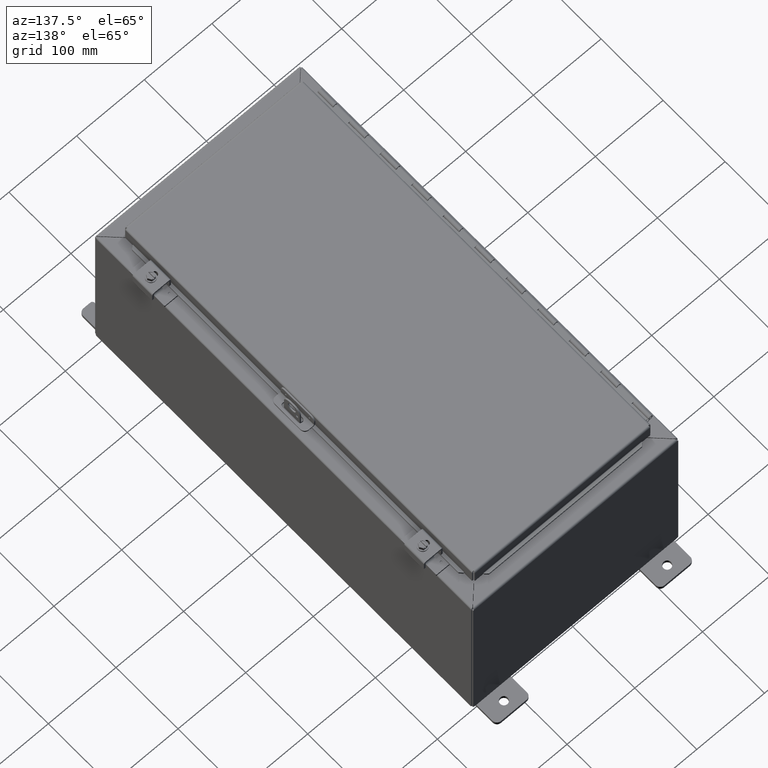
[diagram: clean part render]
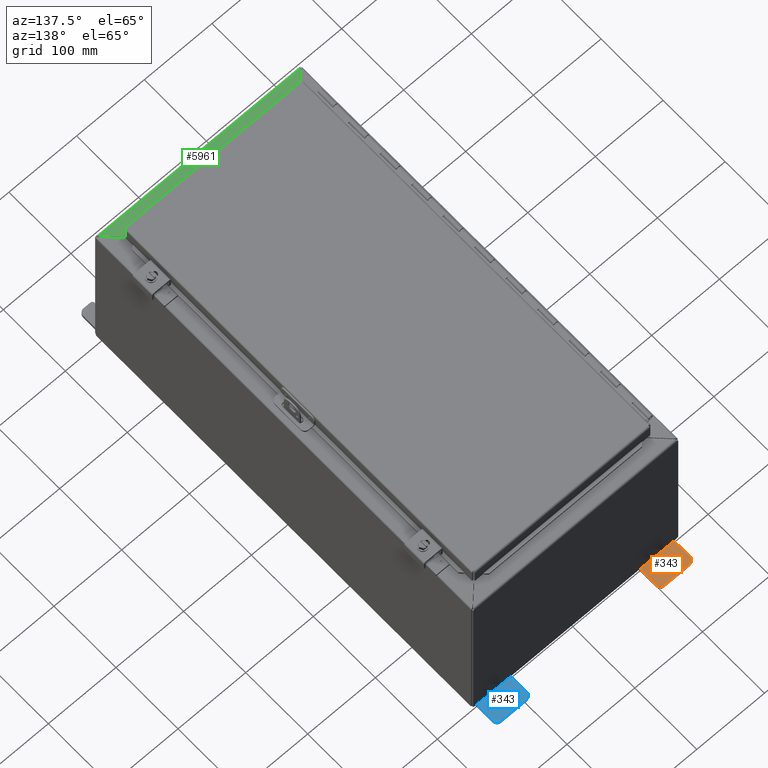
[diagram: same view with three faces highlighted in distinct colors, each labeled with its STEP entity id]
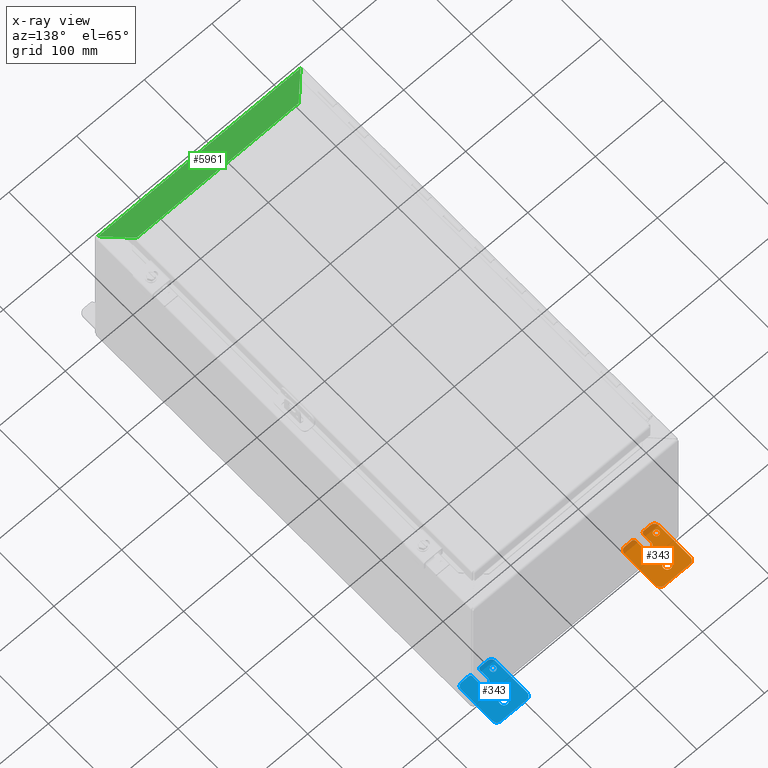
[diagram: x-ray of the same camera — body ghosted, the three highlighted faces saturated]
A machine part, auxiliary view with three faces highlighted in distinct colors.
The next image is the same camera in x-ray (body ghosted, the three faces saturated) — at least one of them is partly hidden behind the body in this view.
Their STEP definitions:

[orange] entity #343 — the highlighted planar face has unit normal (-0, -0, 1).
#135=CARTESIAN_POINT('',(0.4695,0.438,0.18));
#136=VERTEX_POINT('',#135);
#137=CARTESIAN_POINT('',(0.313,0.438,0.18));
#138=DIRECTION('',(0.0,0.0,-1.0));
#139=DIRECTION('',(-1.0,0.0,0.0));
#140=AXIS2_PLACEMENT_3D('',#137,#138,#139);
#141=CIRCLE('',#140,0.1565);
#142=EDGE_CURVE('',#136,#136,#141,.T.);
#163=CARTESIAN_POINT('',(1.344,0.0,0.18));
#164=VERTEX_POINT('',#163);
#171=CARTESIAN_POINT('',(1.219,0.125,0.18));
#172=VERTEX_POINT('',#171);
#173=CARTESIAN_POINT('',(1.344,0.125,0.18));
#174=DIRECTION('',(0.0,0.0,-1.0));
#175=DIRECTION('',(-0.707106781186547,-0.707106781186548,0.0));
#176=AXIS2_PLACEMENT_3D('',#173,#174,#175);
#177=CIRCLE('',#176,0.125);
#178=EDGE_CURVE('',#164,#172,#177,.T.);
#195=CARTESIAN_POINT('',(1.219,0.625,0.18));
#196=VERTEX_POINT('',#195);
#197=CARTESIAN_POINT('',(1.219,0.625,0.18));
#198=DIRECTION('',(0.0,-1.0,0.0));
#199=VECTOR('',#198,0.5);
#200=LINE('',#197,#199);
#201=EDGE_CURVE('',#196,#172,#200,.T.);
#220=CARTESIAN_POINT('',(1.0,1.25,0.18));
#221=DIRECTION('',(0.0,0.0,1.0));
#222=DIRECTION('',(1.0,0.0,0.0));
#223=AXIS2_PLACEMENT_3D('',#220,#221,#222);
#224=PLANE('',#223);
#225=ORIENTED_EDGE('',*,*,#178,.F.);
#226=CARTESIAN_POINT('',(1.75,0.0,0.18));
#227=VERTEX_POINT('',#226);
#228=CARTESIAN_POINT('',(1.75,0.0,0.18));
#229=DIRECTION('',(-1.0,0.0,0.0));
#230=VECTOR('',#229,0.406000000000001);
#231=LINE('',#228,#230);
#232=EDGE_CURVE('',#227,#164,#231,.T.);
#233=ORIENTED_EDGE('',*,*,#232,.F.);
#234=CARTESIAN_POINT('',(2.0,0.25,0.18));
#235=VERTEX_POINT('',#234);
#236=CARTESIAN_POINT('',(1.75,0.25,0.18));
#237=DIRECTION('',(0.0,0.0,-1.0));
#238=DIRECTION('',(0.707106781186548,-0.707106781186548,0.0));
#239=AXIS2_PLACEMENT_3D('',#236,#237,#238);
#240=CIRCLE('',#239,0.25);
#241=EDGE_CURVE('',#235,#227,#240,.T.);
#242=ORIENTED_EDGE('',*,*,#241,.F.);
#243=CARTESIAN_POINT('',(2.0,2.25,0.18));
#244=VERTEX_POINT('',#243);
#245=CARTESIAN_POINT('',(2.0,2.25,0.18));
#246=DIRECTION('',(0.0,-1.0,0.0));
#247=VECTOR('',#246,2.0);
#248=LINE('',#245,#247);
#249=EDGE_CURVE('',#244,#235,#248,.T.);
#250=ORIENTED_EDGE('',*,*,#249,.F.);
#251=CARTESIAN_POINT('',(1.75,2.5,0.18));
#252=VERTEX_POINT('',#251);
#253=CARTESIAN_POINT('',(1.75,2.25,0.18));
#254=DIRECTION('',(0.0,0.0,-1.0));
#255=DIRECTION('',(0.707106781186548,0.707106781186548,0.0));
#256=AXIS2_PLACEMENT_3D('',#253,#254,#255);
#257=CIRCLE('',#256,0.25);
#258=EDGE_CURVE('',#252,#244,#257,.T.);
#259=ORIENTED_EDGE('',*,*,#258,.F.);
#260=CARTESIAN_POINT('',(0.249999999999999,2.5,0.18));
#261=VERTEX_POINT('',#260);
#262=CARTESIAN_POINT('',(0.249999999999999,2.5,0.18));
#263=DIRECTION('',(1.0,0.0,0.0));
#264=VECTOR('',#263,1.500000000000001);
#265=LINE('',#262,#264);
#266=EDGE_CURVE('',#261,#252,#265,.T.);
#267=ORIENTED_EDGE('',*,*,#266,.F.);
#268=CARTESIAN_POINT('',(-6.888638E-016,2.25,0.18));
#269=VERTEX_POINT('',#268);
#270=CARTESIAN_POINT('',(0.249999999999999,2.25,0.18));
#271=DIRECTION('',(0.0,0.0,-1.0));
#272=DIRECTION('',(-0.707106781186548,0.707106781186547,0.0));
#273=AXIS2_PLACEMENT_3D('',#270,#271,#272);
#274=CIRCLE('',#273,0.25);
#275=EDGE_CURVE('',#269,#261,#274,.T.);
#276=ORIENTED_EDGE('',*,*,#275,.F.);
#277=CARTESIAN_POINT('',(-7.654042E-017,0.25,0.18));
#278=VERTEX_POINT('',#277);
#279=CARTESIAN_POINT('',(-7.654042E-017,0.25,0.18));
#280=DIRECTION('',(0.0,1.0,0.0));
#281=VECTOR('',#280,2.0);
#282=LINE('',#279,#281);
#283=EDGE_CURVE('',#278,#269,#282,.T.);
#284=ORIENTED_EDGE('',*,*,#283,.F.);
#285=CARTESIAN_POINT('',(0.25,0.0,0.18));
#286=VERTEX_POINT('',#285);
#287=CARTESIAN_POINT('',(0.25,0.25,0.18));
#288=DIRECTION('',(0.0,0.0,-1.0));
#289=DIRECTION('',(-0.707106781186547,-0.707106781186548,0.0));
#290=AXIS2_PLACEMENT_3D('',#287,#288,#289);
#291=CIRCLE('',#290,0.25);
#292=EDGE_CURVE('',#286,#278,#291,.T.);
#293=ORIENTED_EDGE('',*,*,#292,.F.);
#294=CARTESIAN_POINT('',(0.656,0.0,0.18));
#295=VERTEX_POINT('',#294);
#296=CARTESIAN_POINT('',(0.656,0.0,0.18));
#297=DIRECTION('',(-1.0,0.0,0.0));
#298=VECTOR('',#297,0.406);
#299=LINE('',#296,#298);
#300=EDGE_CURVE('',#295,#286,#299,.T.);
#301=ORIENTED_EDGE('',*,*,#300,.F.);
#302=CARTESIAN_POINT('',(0.781,0.125,0.18));
#303=VERTEX_POINT('',#302);
#304=CARTESIAN_POINT('',(0.656,0.125,0.18));
#305=DIRECTION('',(0.0,0.0,-1.0));
#306=DIRECTION('',(0.707106781186548,-0.707106781186548,0.0));
#307=AXIS2_PLACEMENT_3D('',#304,#305,#306);
#308=CIRCLE('',#307,0.125);
#309=EDGE_CURVE('',#303,#295,#308,.T.);
#310=ORIENTED_EDGE('',*,*,#309,.F.);
#311=CARTESIAN_POINT('',(0.781,0.625,0.18));
#312=VERTEX_POINT('',#311);
#313=CARTESIAN_POINT('',(0.781,0.125,0.18));
#314=DIRECTION('',(0.0,1.0,0.0));
#315=VECTOR('',#314,0.5);
#316=LINE('',#313,#315);
#317=EDGE_CURVE('',#303,#312,#316,.T.);
#318=ORIENTED_EDGE('',*,*,#317,.T.);
#319=CARTESIAN_POINT('',(1.0,0.625,0.18));
#320=DIRECTION('',(0.0,0.0,-1.0));
#321=DIRECTION('',(1.0,0.0,0.0));
#322=AXIS2_PLACEMENT_3D('',#319,#320,#321);
#323=CIRCLE('',#322,0.219);
#324=EDGE_CURVE('',#312,#196,#323,.T.);
#325=ORIENTED_EDGE('',*,*,#324,.T.);
#326=ORIENTED_EDGE('',*,*,#201,.T.);
#327=EDGE_LOOP('',(#225,#233,#242,#250,#259,#267,#276,#284,#293,#301,#310,#318,#325,#326));
#328=FACE_OUTER_BOUND('',#327,.T.);
#329=ORIENTED_EDGE('',*,*,#142,.T.);
#330=EDGE_LOOP('',(#329));
#331=FACE_BOUND('',#330,.T.);
#332=CARTESIAN_POINT('',(1.219,1.875,0.18));
#333=VERTEX_POINT('',#332);
#334=CARTESIAN_POINT('',(1.0,1.875,0.18));
#335=DIRECTION('',(0.0,0.0,-1.0));
#336=DIRECTION('',(-1.0,0.0,0.0));
#337=AXIS2_PLACEMENT_3D('',#334,#335,#336);
#338=CIRCLE('',#337,0.219);
#339=EDGE_CURVE('',#333,#333,#338,.T.);
#340=ORIENTED_EDGE('',*,*,#339,.T.);
#341=EDGE_LOOP('',(#340));
#342=FACE_BOUND('',#341,.T.);
#343=ADVANCED_FACE('',(#328,#331,#342),#224,.T.);

[blue] entity #343 — the highlighted planar face has unit normal (0, 0, 1).
#135=CARTESIAN_POINT('',(0.4695,0.438,0.18));
#136=VERTEX_POINT('',#135);
#137=CARTESIAN_POINT('',(0.313,0.438,0.18));
#138=DIRECTION('',(0.0,0.0,-1.0));
#139=DIRECTION('',(-1.0,0.0,0.0));
#140=AXIS2_PLACEMENT_3D('',#137,#138,#139);
#141=CIRCLE('',#140,0.1565);
#142=EDGE_CURVE('',#136,#136,#141,.T.);
#163=CARTESIAN_POINT('',(1.344,0.0,0.18));
#164=VERTEX_POINT('',#163);
#171=CARTESIAN_POINT('',(1.219,0.125,0.18));
#172=VERTEX_POINT('',#171);
#173=CARTESIAN_POINT('',(1.344,0.125,0.18));
#174=DIRECTION('',(0.0,0.0,-1.0));
#175=DIRECTION('',(-0.707106781186547,-0.707106781186548,0.0));
#176=AXIS2_PLACEMENT_3D('',#173,#174,#175);
#177=CIRCLE('',#176,0.125);
#178=EDGE_CURVE('',#164,#172,#177,.T.);
#195=CARTESIAN_POINT('',(1.219,0.625,0.18));
#196=VERTEX_POINT('',#195);
#197=CARTESIAN_POINT('',(1.219,0.625,0.18));
#198=DIRECTION('',(0.0,-1.0,0.0));
#199=VECTOR('',#198,0.5);
#200=LINE('',#197,#199);
#201=EDGE_CURVE('',#196,#172,#200,.T.);
#220=CARTESIAN_POINT('',(1.0,1.25,0.18));
#221=DIRECTION('',(0.0,0.0,1.0));
#222=DIRECTION('',(1.0,0.0,0.0));
#223=AXIS2_PLACEMENT_3D('',#220,#221,#222);
#224=PLANE('',#223);
#225=ORIENTED_EDGE('',*,*,#178,.F.);
#226=CARTESIAN_POINT('',(1.75,0.0,0.18));
#227=VERTEX_POINT('',#226);
#228=CARTESIAN_POINT('',(1.75,0.0,0.18));
#229=DIRECTION('',(-1.0,0.0,0.0));
#230=VECTOR('',#229,0.406000000000001);
#231=LINE('',#228,#230);
#232=EDGE_CURVE('',#227,#164,#231,.T.);
#233=ORIENTED_EDGE('',*,*,#232,.F.);
#234=CARTESIAN_POINT('',(2.0,0.25,0.18));
#235=VERTEX_POINT('',#234);
#236=CARTESIAN_POINT('',(1.75,0.25,0.18));
#237=DIRECTION('',(0.0,0.0,-1.0));
#238=DIRECTION('',(0.707106781186548,-0.707106781186548,0.0));
#239=AXIS2_PLACEMENT_3D('',#236,#237,#238);
#240=CIRCLE('',#239,0.25);
#241=EDGE_CURVE('',#235,#227,#240,.T.);
#242=ORIENTED_EDGE('',*,*,#241,.F.);
#243=CARTESIAN_POINT('',(2.0,2.25,0.18));
#244=VERTEX_POINT('',#243);
#245=CARTESIAN_POINT('',(2.0,2.25,0.18));
#246=DIRECTION('',(0.0,-1.0,0.0));
#247=VECTOR('',#246,2.0);
#248=LINE('',#245,#247);
#249=EDGE_CURVE('',#244,#235,#248,.T.);
#250=ORIENTED_EDGE('',*,*,#249,.F.);
#251=CARTESIAN_POINT('',(1.75,2.5,0.18));
#252=VERTEX_POINT('',#251);
#253=CARTESIAN_POINT('',(1.75,2.25,0.18));
#254=DIRECTION('',(0.0,0.0,-1.0));
#255=DIRECTION('',(0.707106781186548,0.707106781186548,0.0));
#256=AXIS2_PLACEMENT_3D('',#253,#254,#255);
#257=CIRCLE('',#256,0.25);
#258=EDGE_CURVE('',#252,#244,#257,.T.);
#259=ORIENTED_EDGE('',*,*,#258,.F.);
#260=CARTESIAN_POINT('',(0.249999999999999,2.5,0.18));
#261=VERTEX_POINT('',#260);
#262=CARTESIAN_POINT('',(0.249999999999999,2.5,0.18));
#263=DIRECTION('',(1.0,0.0,0.0));
#264=VECTOR('',#263,1.500000000000001);
#265=LINE('',#262,#264);
#266=EDGE_CURVE('',#261,#252,#265,.T.);
#267=ORIENTED_EDGE('',*,*,#266,.F.);
#268=CARTESIAN_POINT('',(-6.888638E-016,2.25,0.18));
#269=VERTEX_POINT('',#268);
#270=CARTESIAN_POINT('',(0.249999999999999,2.25,0.18));
#271=DIRECTION('',(0.0,0.0,-1.0));
#272=DIRECTION('',(-0.707106781186548,0.707106781186547,0.0));
#273=AXIS2_PLACEMENT_3D('',#270,#271,#272);
#274=CIRCLE('',#273,0.25);
#275=EDGE_CURVE('',#269,#261,#274,.T.);
#276=ORIENTED_EDGE('',*,*,#275,.F.);
#277=CARTESIAN_POINT('',(-7.654042E-017,0.25,0.18));
#278=VERTEX_POINT('',#277);
#279=CARTESIAN_POINT('',(-7.654042E-017,0.25,0.18));
#280=DIRECTION('',(0.0,1.0,0.0));
#281=VECTOR('',#280,2.0);
#282=LINE('',#279,#281);
#283=EDGE_CURVE('',#278,#269,#282,.T.);
#284=ORIENTED_EDGE('',*,*,#283,.F.);
#285=CARTESIAN_POINT('',(0.25,0.0,0.18));
#286=VERTEX_POINT('',#285);
#287=CARTESIAN_POINT('',(0.25,0.25,0.18));
#288=DIRECTION('',(0.0,0.0,-1.0));
#289=DIRECTION('',(-0.707106781186547,-0.707106781186548,0.0));
#290=AXIS2_PLACEMENT_3D('',#287,#288,#289);
#291=CIRCLE('',#290,0.25);
#292=EDGE_CURVE('',#286,#278,#291,.T.);
#293=ORIENTED_EDGE('',*,*,#292,.F.);
#294=CARTESIAN_POINT('',(0.656,0.0,0.18));
#295=VERTEX_POINT('',#294);
#296=CARTESIAN_POINT('',(0.656,0.0,0.18));
#297=DIRECTION('',(-1.0,0.0,0.0));
#298=VECTOR('',#297,0.406);
#299=LINE('',#296,#298);
#300=EDGE_CURVE('',#295,#286,#299,.T.);
#301=ORIENTED_EDGE('',*,*,#300,.F.);
#302=CARTESIAN_POINT('',(0.781,0.125,0.18));
#303=VERTEX_POINT('',#302);
#304=CARTESIAN_POINT('',(0.656,0.125,0.18));
#305=DIRECTION('',(0.0,0.0,-1.0));
#306=DIRECTION('',(0.707106781186548,-0.707106781186548,0.0));
#307=AXIS2_PLACEMENT_3D('',#304,#305,#306);
#308=CIRCLE('',#307,0.125);
#309=EDGE_CURVE('',#303,#295,#308,.T.);
#310=ORIENTED_EDGE('',*,*,#309,.F.);
#311=CARTESIAN_POINT('',(0.781,0.625,0.18));
#312=VERTEX_POINT('',#311);
#313=CARTESIAN_POINT('',(0.781,0.125,0.18));
#314=DIRECTION('',(0.0,1.0,0.0));
#315=VECTOR('',#314,0.5);
#316=LINE('',#313,#315);
#317=EDGE_CURVE('',#303,#312,#316,.T.);
#318=ORIENTED_EDGE('',*,*,#317,.T.);
#319=CARTESIAN_POINT('',(1.0,0.625,0.18));
#320=DIRECTION('',(0.0,0.0,-1.0));
#321=DIRECTION('',(1.0,0.0,0.0));
#322=AXIS2_PLACEMENT_3D('',#319,#320,#321);
#323=CIRCLE('',#322,0.219);
#324=EDGE_CURVE('',#312,#196,#323,.T.);
#325=ORIENTED_EDGE('',*,*,#324,.T.);
#326=ORIENTED_EDGE('',*,*,#201,.T.);
#327=EDGE_LOOP('',(#225,#233,#242,#250,#259,#267,#276,#284,#293,#301,#310,#318,#325,#326));
#328=FACE_OUTER_BOUND('',#327,.T.);
#329=ORIENTED_EDGE('',*,*,#142,.T.);
#330=EDGE_LOOP('',(#329));
#331=FACE_BOUND('',#330,.T.);
#332=CARTESIAN_POINT('',(1.219,1.875,0.18));
#333=VERTEX_POINT('',#332);
#334=CARTESIAN_POINT('',(1.0,1.875,0.18));
#335=DIRECTION('',(0.0,0.0,-1.0));
#336=DIRECTION('',(-1.0,0.0,0.0));
#337=AXIS2_PLACEMENT_3D('',#334,#335,#336);
#338=CIRCLE('',#337,0.219);
#339=EDGE_CURVE('',#333,#333,#338,.T.);
#340=ORIENTED_EDGE('',*,*,#339,.T.);
#341=EDGE_LOOP('',(#340));
#342=FACE_BOUND('',#341,.T.);
#343=ADVANCED_FACE('',(#328,#331,#342),#224,.T.);

[green] entity #5961 — the highlighted planar face has unit normal (0, 0, -1).
#4895=CARTESIAN_POINT('',(-4.719201456544011,-10.730250000000057,10.000000000000016));
#4896=VERTEX_POINT('',#4895);
#4943=CARTESIAN_POINT('',(4.71920145654401,-10.730250000000051,10.000000000000011));
#4944=VERTEX_POINT('',#4943);
#4969=CARTESIAN_POINT('',(4.71920145654401,-10.730250000000051,10.000000000000014));
#4970=DIRECTION('',(-1.0,0.0,0.0));
#4971=VECTOR('',#4970,9.438402913088019);
#4972=LINE('',#4969,#4971);
#4973=EDGE_CURVE('',#4944,#4896,#4972,.T.);
#5501=CARTESIAN_POINT('',(5.883701456544008,-11.894750000000048,10.0));
#5502=VERTEX_POINT('',#5501);
#5503=CARTESIAN_POINT('',(4.71920145654401,-10.730250000000051,10.000000000000012));
#5504=DIRECTION('',(0.707106781186548,-0.707106781186547,-7.550466E-015));
#5505=VECTOR('',#5504,1.646851693383465);
#5506=LINE('',#5503,#5505);
#5507=EDGE_CURVE('',#4944,#5502,#5506,.T.);
#5938=CARTESIAN_POINT('',(-1.638690E-015,-11.30301692111547,10.000000000000009));
#5939=DIRECTION('',(0.0,0.0,-1.0));
#5940=DIRECTION('',(0.0,1.0,0.0));
#5941=AXIS2_PLACEMENT_3D('',#5938,#5939,#5940);
#5942=PLANE('',#5941);
#5943=ORIENTED_EDGE('',*,*,#4973,.T.);
#5944=CARTESIAN_POINT('',(-5.883701456544006,-11.894750000000053,10.000000000000005));
#5945=VERTEX_POINT('',#5944);
#5946=CARTESIAN_POINT('',(-5.883701456544006,-11.894750000000053,10.000000000000005));
#5947=DIRECTION('',(0.707106781186547,0.707106781186547,6.471828E-015));
#5948=VECTOR('',#5947,1.646851693383465);
#5949=LINE('',#5946,#5948);
#5950=EDGE_CURVE('',#5945,#4896,#5949,.T.);
#5951=ORIENTED_EDGE('',*,*,#5950,.F.);
#5952=CARTESIAN_POINT('',(-5.883701456544006,-11.894750000000053,10.000000000000004));
#5953=DIRECTION('',(1.0,0.0,0.0));
#5954=VECTOR('',#5953,11.767402913088015);
#5955=LINE('',#5952,#5954);
#5956=EDGE_CURVE('',#5945,#5502,#5955,.T.);
#5957=ORIENTED_EDGE('',*,*,#5956,.T.);
#5958=ORIENTED_EDGE('',*,*,#5507,.F.);
#5959=EDGE_LOOP('',(#5943,#5951,#5957,#5958));
#5960=FACE_OUTER_BOUND('',#5959,.T.);
#5961=ADVANCED_FACE('',(#5960),#5942,.F.);